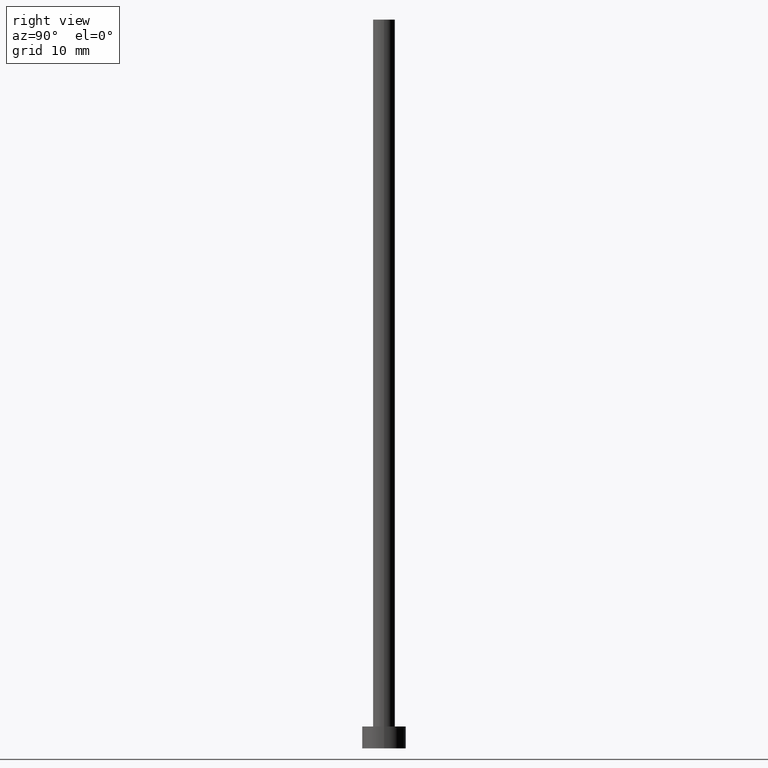
[diagram: clean part render]
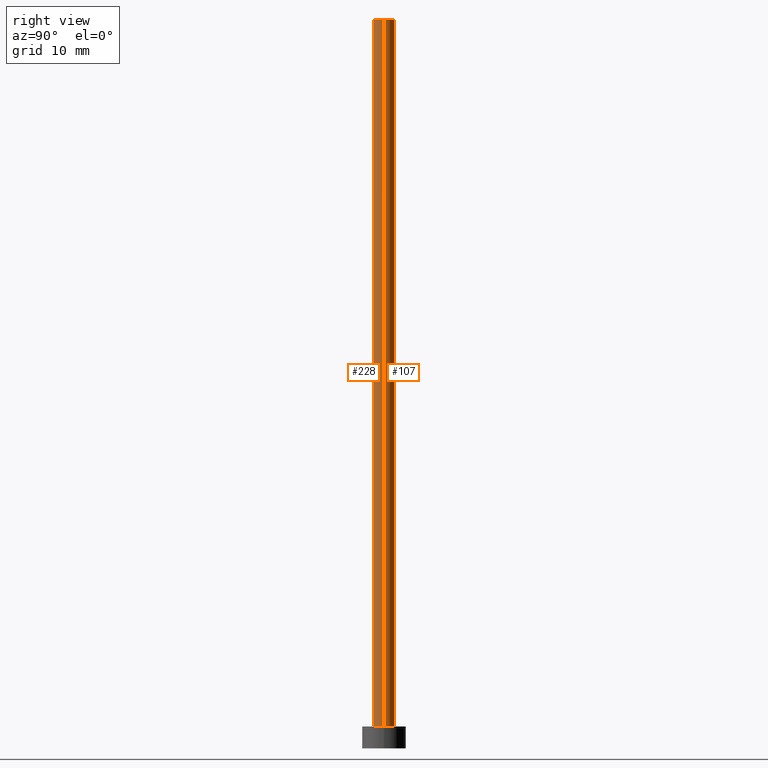
[diagram: same view with one multi-face feature highlighted, each face labeled with its STEP entity id]
A machine part, right view. The highlighted faces form ONE feature: a constant-radius fillet chain: 2 tangent blend faces with common blend radius 1.5 mm. The faces share edges in the B-rep.
Their STEP definitions:
[1] entity #107 (Cylinder):
#6 = CARTESIAN_POINT ( 'NONE',  ( -1.500000000000000222, 0.000000000000000000, 100.0000000000000000 ) ) ;
#23 = CIRCLE ( 'NONE', #57, 1.500000000000000222 ) ;
#25 = EDGE_CURVE ( 'NONE', #106, #58, #23, .T. ) ;
#29 = ORIENTED_EDGE ( 'NONE', *, *, #245, .T. ) ;
#43 = AXIS2_PLACEMENT_3D ( 'NONE', #189, #236, #209 ) ;
#48 = CARTESIAN_POINT ( 'NONE',  ( 1.500000000000000222, 1.836970198721029934E-16, 100.0000000000000000 ) ) ;
#51 = FACE_OUTER_BOUND ( 'NONE', #195, .T. ) ;
#55 = VECTOR ( 'NONE', #128, 1000.000000000000000 ) ;
#56 = DIRECTION ( 'NONE',  ( -0.000000000000000000, -0.000000000000000000, -1.000000000000000000 ) ) ;
#57 = AXIS2_PLACEMENT_3D ( 'NONE', #60, #163, #250 ) ;
#58 = VERTEX_POINT ( 'NONE', #80 ) ;
#60 = CARTESIAN_POINT ( 'NONE',  ( 0.000000000000000000, 0.000000000000000000, 3.000000000000000000 ) ) ;
#66 = CARTESIAN_POINT ( 'NONE',  ( 1.500000000000000222, 1.836970198721029934E-16, 100.0000000000000000 ) ) ;
#80 = CARTESIAN_POINT ( 'NONE',  ( -1.500000000000000222, 0.000000000000000000, 3.000000000000000000 ) ) ;
#82 = VERTEX_POINT ( 'NONE', #113 ) ;
#95 = EDGE_CURVE ( 'NONE', #82, #58, #114, .T. ) ;
#106 = VERTEX_POINT ( 'NONE', #199 ) ;
#107 = ADVANCED_FACE ( 'NONE', ( #51 ), #180, .T. ) ;
#110 = CARTESIAN_POINT ( 'NONE',  ( 0.000000000000000000, 0.000000000000000000, 100.0000000000000000 ) ) ;
#113 = CARTESIAN_POINT ( 'NONE',  ( -1.500000000000000222, 0.000000000000000000, 100.0000000000000000 ) ) ;
#114 = LINE ( 'NONE', #6, #172 ) ;
#127 = ORIENTED_EDGE ( 'NONE', *, *, #95, .F. ) ;
#128 = DIRECTION ( 'NONE',  ( -0.000000000000000000, -0.000000000000000000, -1.000000000000000000 ) ) ;
#139 = ORIENTED_EDGE ( 'NONE', *, *, #25, .T. ) ;
#163 = DIRECTION ( 'NONE',  ( 0.000000000000000000, 0.000000000000000000, 1.000000000000000000 ) ) ;
#168 = ORIENTED_EDGE ( 'NONE', *, *, #208, .F. ) ;
#172 = VECTOR ( 'NONE', #56, 1000.000000000000000 ) ;
#174 = DIRECTION ( 'NONE',  ( -0.000000000000000000, -0.000000000000000000, -1.000000000000000000 ) ) ;
#180 = CYLINDRICAL_SURFACE ( 'NONE', #211, 1.500000000000000222 ) ;
#189 = CARTESIAN_POINT ( 'NONE',  ( 0.000000000000000000, 0.000000000000000000, 100.0000000000000000 ) ) ;
#195 = EDGE_LOOP ( 'NONE', ( #168, #29, #139, #127 ) ) ;
#199 = CARTESIAN_POINT ( 'NONE',  ( 1.500000000000000222, 1.836970198721029934E-16, 3.000000000000000000 ) ) ;
#205 = CIRCLE ( 'NONE', #43, 1.500000000000000222 ) ;
#208 = EDGE_CURVE ( 'NONE', #233, #82, #205, .T. ) ;
#209 = DIRECTION ( 'NONE',  ( 1.000000000000000000, 0.000000000000000000, 0.000000000000000000 ) ) ;
#211 = AXIS2_PLACEMENT_3D ( 'NONE', #110, #174, #243 ) ;
#233 = VERTEX_POINT ( 'NONE', #66 ) ;
#236 = DIRECTION ( 'NONE',  ( 0.000000000000000000, 0.000000000000000000, 1.000000000000000000 ) ) ;
#238 = LINE ( 'NONE', #48, #55 ) ;
#243 = DIRECTION ( 'NONE',  ( -1.000000000000000000, 0.000000000000000000, 0.000000000000000000 ) ) ;
#245 = EDGE_CURVE ( 'NONE', #233, #106, #238, .T. ) ;
#250 = DIRECTION ( 'NONE',  ( 1.000000000000000000, 0.000000000000000000, 0.000000000000000000 ) ) ;
[2] entity #228 (Cylinder):
#1 = CARTESIAN_POINT ( 'NONE',  ( 0.000000000000000000, 0.000000000000000000, 3.000000000000000000 ) ) ;
#6 = CARTESIAN_POINT ( 'NONE',  ( -1.500000000000000222, 0.000000000000000000, 100.0000000000000000 ) ) ;
#9 = CARTESIAN_POINT ( 'NONE',  ( 0.000000000000000000, 0.000000000000000000, 100.0000000000000000 ) ) ;
#22 = EDGE_CURVE ( 'NONE', #58, #106, #156, .T. ) ;
#24 = DIRECTION ( 'NONE',  ( 0.000000000000000000, 0.000000000000000000, 1.000000000000000000 ) ) ;
#26 = ORIENTED_EDGE ( 'NONE', *, *, #200, .F. ) ;
#33 = ORIENTED_EDGE ( 'NONE', *, *, #22, .T. ) ;
#48 = CARTESIAN_POINT ( 'NONE',  ( 1.500000000000000222, 1.836970198721029934E-16, 100.0000000000000000 ) ) ;
#55 = VECTOR ( 'NONE', #128, 1000.000000000000000 ) ;
#56 = DIRECTION ( 'NONE',  ( -0.000000000000000000, -0.000000000000000000, -1.000000000000000000 ) ) ;
#58 = VERTEX_POINT ( 'NONE', #80 ) ;
#59 = DIRECTION ( 'NONE',  ( 0.000000000000000000, 0.000000000000000000, 1.000000000000000000 ) ) ;
#66 = CARTESIAN_POINT ( 'NONE',  ( 1.500000000000000222, 1.836970198721029934E-16, 100.0000000000000000 ) ) ;
#75 = CIRCLE ( 'NONE', #186, 1.500000000000000222 ) ;
#77 = AXIS2_PLACEMENT_3D ( 'NONE', #9, #176, #184 ) ;
#79 = DIRECTION ( 'NONE',  ( 1.000000000000000000, 0.000000000000000000, 0.000000000000000000 ) ) ;
#80 = CARTESIAN_POINT ( 'NONE',  ( -1.500000000000000222, 0.000000000000000000, 3.000000000000000000 ) ) ;
#82 = VERTEX_POINT ( 'NONE', #113 ) ;
#95 = EDGE_CURVE ( 'NONE', #82, #58, #114, .T. ) ;
#101 = ORIENTED_EDGE ( 'NONE', *, *, #95, .T. ) ;
#106 = VERTEX_POINT ( 'NONE', #199 ) ;
#113 = CARTESIAN_POINT ( 'NONE',  ( -1.500000000000000222, 0.000000000000000000, 100.0000000000000000 ) ) ;
#114 = LINE ( 'NONE', #6, #172 ) ;
#121 = DIRECTION ( 'NONE',  ( 1.000000000000000000, 0.000000000000000000, 0.000000000000000000 ) ) ;
#126 = ORIENTED_EDGE ( 'NONE', *, *, #245, .F. ) ;
#128 = DIRECTION ( 'NONE',  ( -0.000000000000000000, -0.000000000000000000, -1.000000000000000000 ) ) ;
#156 = CIRCLE ( 'NONE', #234, 1.500000000000000222 ) ;
#171 = EDGE_LOOP ( 'NONE', ( #126, #26, #101, #33 ) ) ;
#172 = VECTOR ( 'NONE', #56, 1000.000000000000000 ) ;
#176 = DIRECTION ( 'NONE',  ( -0.000000000000000000, -0.000000000000000000, -1.000000000000000000 ) ) ;
#184 = DIRECTION ( 'NONE',  ( -1.000000000000000000, 0.000000000000000000, 0.000000000000000000 ) ) ;
#186 = AXIS2_PLACEMENT_3D ( 'NONE', #252, #59, #121 ) ;
#199 = CARTESIAN_POINT ( 'NONE',  ( 1.500000000000000222, 1.836970198721029934E-16, 3.000000000000000000 ) ) ;
#200 = EDGE_CURVE ( 'NONE', #82, #233, #75, .T. ) ;
#215 = FACE_OUTER_BOUND ( 'NONE', #171, .T. ) ;
#228 = ADVANCED_FACE ( 'NONE', ( #215 ), #232, .T. ) ;
#232 = CYLINDRICAL_SURFACE ( 'NONE', #77, 1.500000000000000222 ) ;
#233 = VERTEX_POINT ( 'NONE', #66 ) ;
#234 = AXIS2_PLACEMENT_3D ( 'NONE', #1, #24, #79 ) ;
#238 = LINE ( 'NONE', #48, #55 ) ;
#245 = EDGE_CURVE ( 'NONE', #233, #106, #238, .T. ) ;
#252 = CARTESIAN_POINT ( 'NONE',  ( 0.000000000000000000, 0.000000000000000000, 100.0000000000000000 ) ) ;